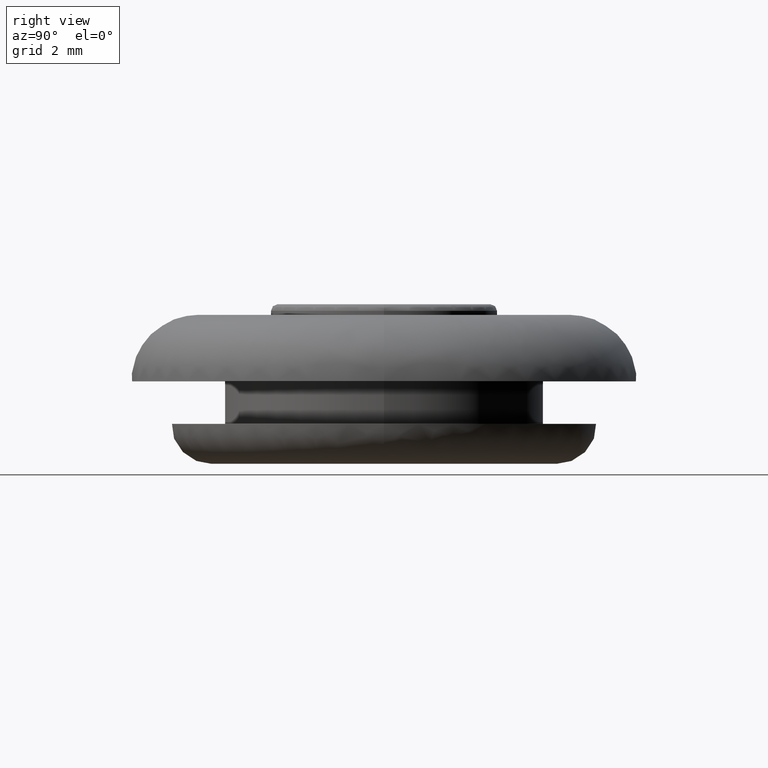
[diagram: clean part render]
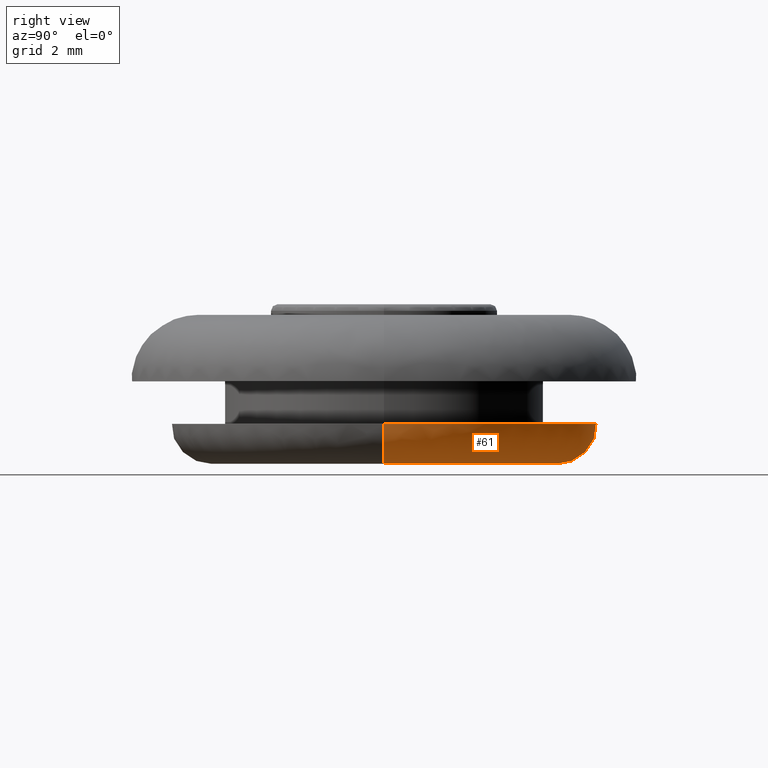
[diagram: same view with one face highlighted and labeled with its STEP entity id]
A machine part, right view. The second image highlights one B-rep face of the part: STEP entity #61.
In plain terms, the highlighted face is a freeform B-spline surface patch.
Its self-contained STEP definition (entity closure, byte-faithful):
#61=ADVANCED_FACE('',(#279),#278,.T.);
#278=( BOUNDED_SURFACE() B_SPLINE_SURFACE( 2,2,((#534,#535,#536,#537,#538),(#539,#540,#541,#542,#543),(#544,#545,#546,#547,#548),(#549,#550,#551,#552,#553),(#554,#555,#556,#557,#558)), .UNSPECIFIED.,.F.,.F.,.F.) B_SPLINE_SURFACE_WITH_KNOTS((3,2,3),(3,2,3),(0.00000000000E+000,5.00000000000E-001,1.00000000000E+000),(0.00000000000E+000,5.00000000000E-001,1.00000000000E+000), .UNSPECIFIED. ) GEOMETRIC_REPRESENTATION_ITEM() RATIONAL_B_SPLINE_SURFACE(((1.00000000000E+000,7.07106781186E-001,1.00000000000E+000,7.07106781186E-001,1.00000000000E+000),(7.07106781187E-001,5.00000000000E-001,7.07106781187E-001,5.00000000000E-001,7.07106781187E-001),(1.00000000000E+000,7.07106781186E-001,1.00000000000E+000,7.07106781186E-001,1.00000000000E+000),(7.07106781187E-001,5.00000000000E-001,7.07106781187E-001,5.00000000000E-001,7.07106781187E-001),(1.00000000000E+000,7.07106781186E-001,1.00000000000E+000,7.07106781186E-001,1.00000000000E+000))) REPRESENTATION_ITEM('') SURFACE() );
#279=FACE_OUTER_BOUND('',#559,.T.);
#534=CARTESIAN_POINT('',(-8.00000000000E+000,7.59015739129E-014,-3.60000000000E+000));
#535=CARTESIAN_POINT('',(-8.00000000000E+000,2.96996796108E-014,-5.10000000000E+000));
#536=CARTESIAN_POINT('',(-6.50000000000E+000,2.16831042136E-014,-5.10000000000E+000));
#537=CARTESIAN_POINT('',(-5.00000000000E+000,1.36665288165E-014,-5.10000000000E+000));
#538=CARTESIAN_POINT('',(-5.00000000000E+000,5.98684231186E-014,-3.60000000000E+000));
#539=CARTESIAN_POINT('',(-8.00000000000E+000,8.00000000000E+000,-3.60000000000E+000));
#540=CARTESIAN_POINT('',(-8.00000000000E+000,8.00000000000E+000,-5.10000000000E+000));
#541=CARTESIAN_POINT('',(-6.50000000000E+000,6.50000000000E+000,-5.10000000000E+000));
#542=CARTESIAN_POINT('',(-5.00000000000E+000,5.00000000000E+000,-5.10000000000E+000));
#543=CARTESIAN_POINT('',(-5.00000000000E+000,5.00000000000E+000,-3.60000000000E+000));
#544=CARTESIAN_POINT('',(4.22652100654E-014,8.00000000000E+000,-3.60000000000E+000));
#545=CARTESIAN_POINT('',(4.22652100654E-014,8.00000000000E+000,-5.10000000000E+000));
#546=CARTESIAN_POINT('',(3.43404831781E-014,6.50000000000E+000,-5.10000000000E+000));
#547=CARTESIAN_POINT('',(2.64157562909E-014,5.00000000000E+000,-5.10000000000E+000));
#548=CARTESIAN_POINT('',(2.64157562909E-014,5.00000000000E+000,-3.60000000000E+000));
#549=CARTESIAN_POINT('',(8.00000000000E+000,8.00000000000E+000,-3.60000000000E+000));
#550=CARTESIAN_POINT('',(8.00000000000E+000,8.00000000000E+000,-5.10000000000E+000));
#551=CARTESIAN_POINT('',(6.50000000000E+000,6.50000000000E+000,-5.10000000000E+000));
#552=CARTESIAN_POINT('',(5.00000000000E+000,5.00000000000E+000,-5.10000000000E+000));
#553=CARTESIAN_POINT('',(5.00000000000E+000,5.00000000000E+000,-3.60000000000E+000));
#554=CARTESIAN_POINT('',(8.00000000000E+000,-8.62884621785E-015,-3.60000000000E+000));
#555=CARTESIAN_POINT('',(8.00000000000E+000,-5.48307405200E-014,-5.10000000000E+000));
#556=CARTESIAN_POINT('',(6.50000000000E+000,-4.69978621426E-014,-5.10000000000E+000));
#557=CARTESIAN_POINT('',(5.00000000000E+000,-3.91649837653E-014,-5.10000000000E+000));
#558=CARTESIAN_POINT('',(5.00000000000E+000,7.03691053682E-015,-3.60000000000E+000));
#559=EDGE_LOOP('',(#666,#667,#668,#669));
#666=ORIENTED_EDGE('',*,*,#683,.F.);
#667=ORIENTED_EDGE('',*,*,#716,.F.);
#668=ORIENTED_EDGE('',*,*,#687,.T.);
#669=ORIENTED_EDGE('',*,*,#717,.T.);
#683=EDGE_CURVE('',#775,#774,#782,.T.);
#687=EDGE_CURVE('',#803,#802,#810,.T.);
#716=EDGE_CURVE('',#803,#775,#998,.T.);
#717=EDGE_CURVE('',#802,#774,#1004,.T.);
#774=VERTEX_POINT('',#1050);
#775=VERTEX_POINT('',#1051);
#782=CIRCLE('',#1059,6.50000000000E+000);
#802=VERTEX_POINT('',#1070);
#803=VERTEX_POINT('',#1071);
#810=CIRCLE('',#1079,8.00000000000E+000);
#998=(BOUNDED_CURVE() B_SPLINE_CURVE(2,(#1187,#1188,#1189),.UNSPECIFIED.,.F.,.F.) B_SPLINE_CURVE_WITH_KNOTS((3,3),(0.00000000000E+000,5.00000000000E-001),.UNSPECIFIED.) CURVE() GEOMETRIC_REPRESENTATION_ITEM() RATIONAL_B_SPLINE_CURVE((1.00000000000E+000,7.07106781186E-001,1.00000000000E+000)) REPRESENTATION_ITEM('') );
#1004=(BOUNDED_CURVE() B_SPLINE_CURVE(3,(#1190,#1191,#1192,#1193,#1194),.UNSPECIFIED.,.F.,.F.) B_SPLINE_CURVE_WITH_KNOTS((4,1,4),(0.00000000000E+000,2.50000000573E-001,5.00000000996E-001),.UNSPECIFIED.) CURVE() GEOMETRIC_REPRESENTATION_ITEM() RATIONAL_B_SPLINE_CURVE((1.00000000000E+000,1.00000000000E+000,1.00000000000E+000,1.00000000000E+000,1.00000000000E+000)) REPRESENTATION_ITEM('') );
#1050=CARTESIAN_POINT('',(6.50000000000E+000,7.95994129985E-016,-5.10000000000E+000));
#1051=CARTESIAN_POINT('',(-6.50000000000E+000,2.96059473233E-016,-5.10000000000E+000));
#1056=CARTESIAN_POINT('',(0.00000000000E+000,0.00000000000E+000,-5.10000000000E+000));
#1057=DIRECTION('',(0.00000000000E+000,0.00000000000E+000,-1.00000000000E+000));
#1058=DIRECTION('',(1.00000000000E+000,-0.00000000000E+000,-0.00000000000E+000));
#1059=AXIS2_PLACEMENT_3D('',#1056,#1057,#1058);
#1070=CARTESIAN_POINT('',(8.00000000000E+000,2.96059473233E-016,-3.60000000000E+000));
#1071=CARTESIAN_POINT('',(-8.00000000000E+000,-1.86786350276E-015,-3.60000000000E+000));
#1076=CARTESIAN_POINT('',(0.00000000000E+000,0.00000000000E+000,-3.60000000000E+000));
#1077=DIRECTION('',(0.00000000000E+000,0.00000000000E+000,-1.00000000000E+000));
#1078=DIRECTION('',(-1.00000000000E+000,-1.11022302463E-016,-0.00000000000E+000));
#1079=AXIS2_PLACEMENT_3D('',#1076,#1077,#1078);
#1187=CARTESIAN_POINT('',(-8.00000000000E+000,7.59015739129E-014,-3.60000000000E+000));
#1188=CARTESIAN_POINT('',(-8.00000000000E+000,2.96996796108E-014,-5.10000000000E+000));
#1189=CARTESIAN_POINT('',(-6.50000000000E+000,2.16831042136E-014,-5.10000000000E+000));
#1190=CARTESIAN_POINT('',(8.00000000000E+000,-1.00660220899E-014,-3.60000000000E+000));
#1191=CARTESIAN_POINT('',(8.00333608890E+000,-2.21371155026E-014,-3.98917566042E+000));
#1192=CARTESIAN_POINT('',(7.67506446797E+000,-4.47331768616E-014,-4.77506447152E+000));
#1193=CARTESIAN_POINT('',(6.88917565595E+000,-5.07247871420E-014,-5.10333608999E+000));
#1194=CARTESIAN_POINT('',(6.49999999578E+000,-4.85537535850E-014,-5.10000000000E+000));